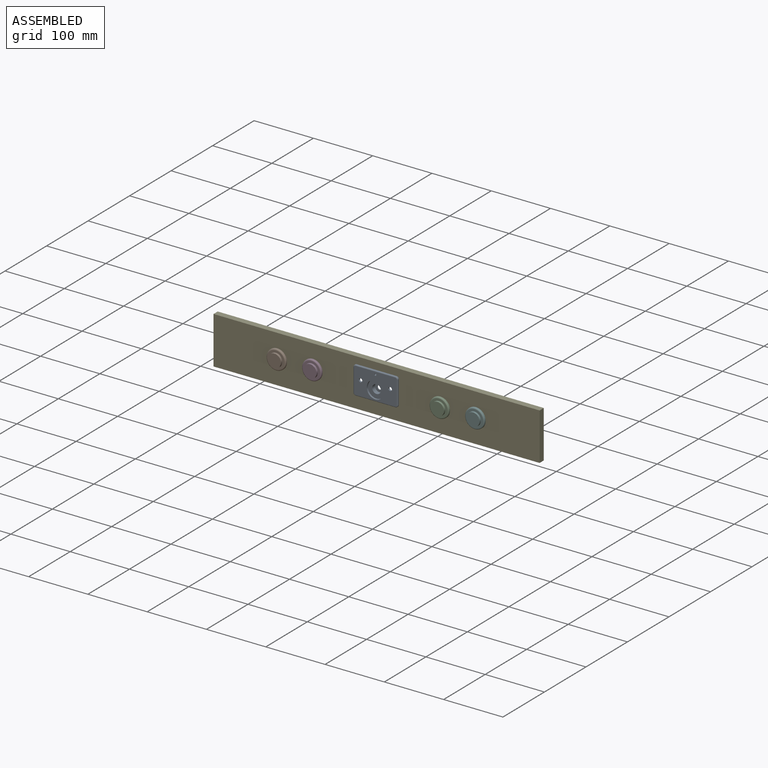
[diagram: assembled view]
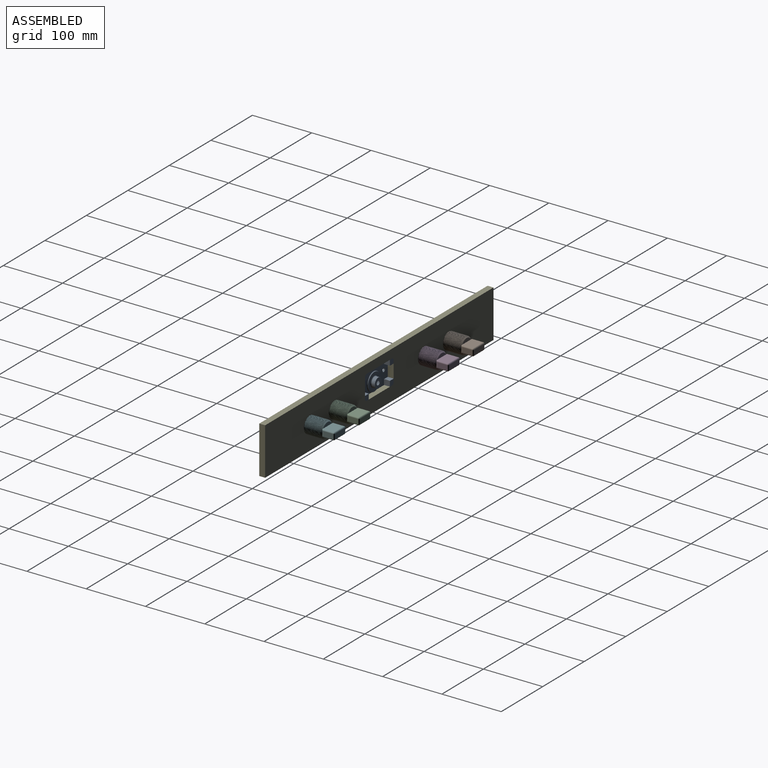
[diagram: assembled view, second angle]
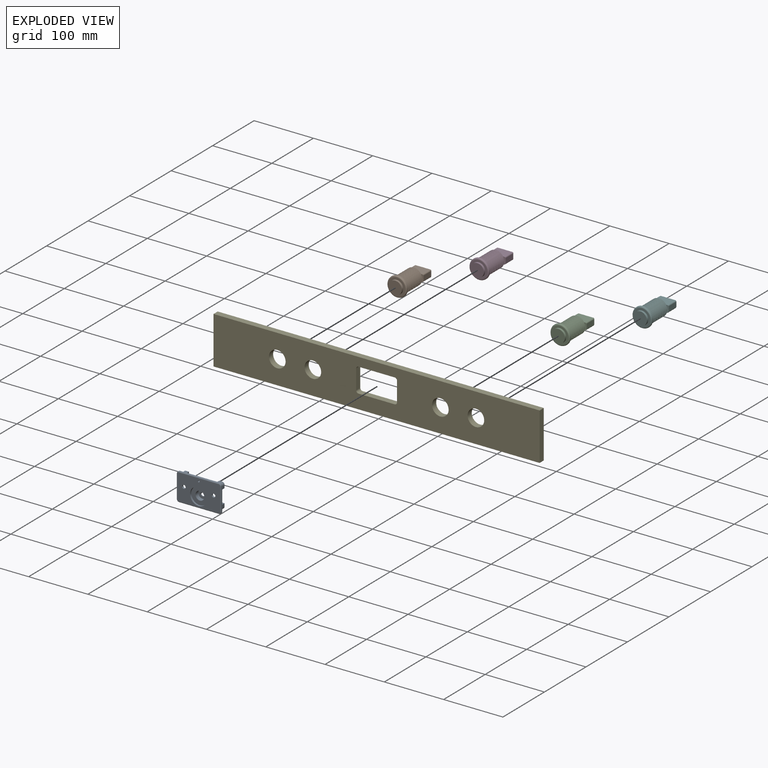
[diagram: exploded view]
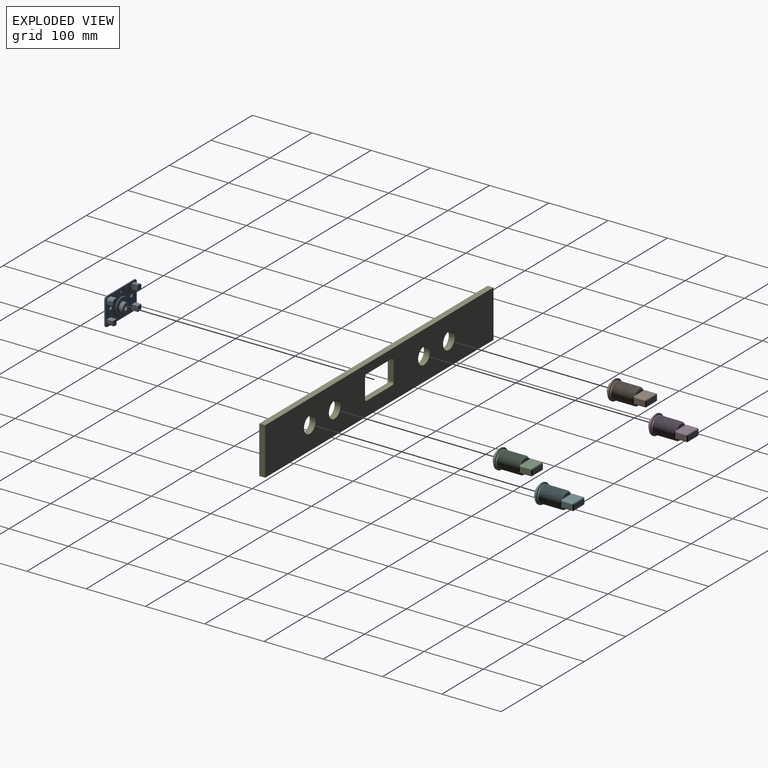
[diagram: exploded view, second angle]
ASSEMBLY  parts=6 mates=5
PART A: 58 faces, bbox 75.7x13x47.7 mm
  f0: plane 75x47mm, normal (0,1,0), area 2333.1mm2, adj f1,f2,f3,f5,f6,f7,f8,f20
  f1: plane 67x1.5mm, normal (0,0,1), area 100.5mm2, adj f0,f44,f47,f50
  f2: plane 39x1.5mm, normal (-1,0,0), area 58.5mm2, adj f0,f44,f45,f53
  f3: plane 67x1.5mm, normal (0,0,-1), area 100.5mm2, adj f0,f45,f46,f57
  f4: cylinder r=14.5mm len=29mm, axis (0,1,0), area 273.3mm2, adj f9,f10
  f5: cylinder r=1.5mm len=3mm, axis (0,1,0), area 28.3mm2, adj f0,f9
  f6: cylinder r=3mm len=6mm, axis (0,1,0), area 56.5mm2, adj f0,f9
  f7: cylinder r=3mm len=6mm, axis (0,1,0), area 56.5mm2, adj f0,f9
  f8: plane 39x1.5mm, normal (1,0,0), area 58.5mm2, adj f0,f46,f47,f54
  f9: plane 72x44mm, normal (0,-1,0), area 2438.5mm2, adj f4,f5,f6,f7,f50,f51,f52,f53
  f10: plane 29x29mm, normal (0,-1,0), area 488.5mm2, adj f4,f12
  f11: cylinder r=15mm len=30mm, axis (0,-1,0), area 47.1mm2, adj f13,f49
  f12: cylinder r=7.4mm len=14.8mm, axis (0,-1,0), area 320.8mm2, adj f10,f19
  f13: plane 30x30mm, normal (0,1,0), area 438.1mm2, adj f11,f48
  f14: cylinder r=8.25mm len=16.5mm, axis (0,-1,0), area 228.1mm2, adj f15,f48
  f15: plane 16.5x16.5mm, normal (0,1,0), area 2.6mm2, adj f14,f16
  f16: cylinder r=8.2mm len=16.4mm, axis (0,-1,0), area 61.8mm2, adj f15,f18
  f17: cylinder r=3.52mm len=7.05mm, axis (0,-1,0), area 26.6mm2, adj f18,f19
  f18: plane 16.4x16.4mm, normal (0,1,0), area 172.2mm2, adj f16,f17
  f19: plane 14.8x14.8mm, normal (0,-1,0), area 133mm2, adj f12,f17
  f20: plane 10x5mm, normal (0,0,1), area 50mm2, adj f0,f23,f24,f43
  f21: plane 10x5mm, normal (1,0,0), area 50mm2, adj f0,f22,f24,f43
  f22: plane 10x9mm, normal (0,0,-1), area 90mm2, adj f0,f21,f23,f24
  f23: plane 10x9mm, normal (-1,0,0), area 90mm2, adj f0,f20,f22,f24
  f24: plane 9x9mm, normal (0,1,0), area 77.6mm2, adj f20,f21,f22,f23,f43
  f25: plane 10x5mm, normal (0,0,1), area 50mm2, adj f0,f26,f29,f42
  f26: plane 10x9mm, normal (1,0,0), area 90mm2, adj f0,f25,f27,f29
  f27: plane 10x9mm, normal (0,0,-1), area 90mm2, adj f0,f26,f28,f29
  f28: plane 10x5mm, normal (-1,0,0), area 50mm2, adj f0,f27,f29,f42
  f29: plane 9x9mm, normal (0,1,0), area 77.6mm2, adj f25,f26,f27,f28,f42
  f30: plane 10x9mm, normal (0,0,1), area 90mm2, adj f0,f31,f33,f34
  f31: plane 10x5mm, normal (1,0,0), area 50mm2, adj f0,f30,f34,f41
  f32: plane 10x5mm, normal (0,0,-1), area 50mm2, adj f0,f33,f34,f41
  f33: plane 10x9mm, normal (-1,0,0), area 90mm2, adj f0,f30,f32,f34
  f34: plane 9x9mm, normal (0,1,0), area 77.6mm2, adj f30,f31,f32,f33,f41
  f35: plane 10x5mm, normal (-1,0,0), area 50mm2, adj f0,f36,f39,f40
  f36: plane 10x9mm, normal (0,0,1), area 90mm2, adj f0,f35,f37,f39
  f37: plane 10x9mm, normal (1,0,0), area 90mm2, adj f0,f36,f38,f39
  f38: plane 10x5mm, normal (0,0,-1), area 50mm2, adj f0,f37,f39,f40
  f39: plane 9x9mm, normal (0,1,0), area 77.6mm2, adj f35,f36,f37,f38,f40
  f40: cylinder r=4mm len=10mm, axis (0,1,0), area 62.8mm2, adj f0,f35,f38,f39
  f41: cylinder r=4mm len=10mm, axis (0,1,0), area 62.8mm2, adj f0,f31,f32,f34
  f42: cylinder r=4mm len=10mm, axis (0,1,0), area 62.8mm2, adj f0,f25,f28,f29
  f43: cylinder r=4mm len=10mm, axis (0,1,0), area 62.8mm2, adj f0,f20,f21,f24
  f44: cylinder r=4mm len=4mm, axis (0,-1,0), area 9.4mm2, adj f0,f1,f2,f51
  f45: cylinder r=4mm len=4mm, axis (0,1,0), area 9.4mm2, adj f0,f2,f3,f55
  f46: cylinder r=4mm len=4mm, axis (0,-1,0), area 9.4mm2, adj f0,f3,f8,f56
  f47: cylinder r=4mm len=4mm, axis (0,1,0), area 9.4mm2, adj f0,f1,f8,f52
  f48: torus R=9.25mm, axis (0,1,0), area 85mm2, adj f13,f14
  f49: torus R=16mm, axis (0,-1,0), area 151.6mm2, adj f0,f11
  f50: cylinder r=1.5mm len=67mm, axis (1,0,0), area 157.9mm2, adj f1,f9,f51,f52
  f51: torus R=2.5mm, axis (0,-1,0), area 12.8mm2, adj f9,f44,f50,f53
  f52: torus R=2.5mm, axis (0,-1,0), area 12.8mm2, adj f9,f47,f50,f54
  f53: cylinder r=1.5mm len=39mm, axis (0,0,1), area 91.9mm2, adj f2,f9,f51,f55
  f54: cylinder r=1.5mm len=39mm, axis (0,0,-1), area 91.9mm2, adj f8,f9,f52,f56
  f55: torus R=2.5mm, axis (0,-1,0), area 12.8mm2, adj f9,f45,f53,f57
  f56: torus R=2.5mm, axis (0,-1,0), area 12.8mm2, adj f9,f46,f54,f57
  f57: cylinder r=1.5mm len=67mm, axis (-1,0,0), area 157.9mm2, adj f3,f9,f55,f56
PART B: 66 faces, bbox 35.9x35.9x68.2 mm
  f0: cylinder r=11mm len=22mm, axis (0,0,-1), area 241.9mm2, adj f1,f65
  f1: plane 29x29mm, normal (0,0,1), area 280.4mm2, adj f0,f2
  f2: torus R=14.5mm, axis (0,0,-1), area 311.4mm2, adj f1,f3
  f3: cylinder r=16.5mm len=33mm, axis (0,0,-1), area 155.5mm2, adj f2,f4
  f4: plane 33x33mm, normal (0,0,-1), area 239.5mm2, adj f3,f5
  f5: cylinder r=14mm len=28mm, axis (0,0,1), area 175.6mm2, adj f4,f6,f7,f61,f62,f63,f64
  f6: plane 4.27x3.25mm, normal (0.25,0.43,-0.87), area 2.9mm2, adj f5,f7,f64
  f7: cylinder r=0.2mm len=4.33mm, axis (-0.87,0.5,0), area 2mm2, adj f5,f6,f8,f61
  f8: bspline ~37.6x30.48mm, area 853.8mm2, adj f7,f9,f62,f64
  f9: cone r=12mm half-angle=45deg, axis (0,0,1), area 177.3mm2, adj f8,f10,f33,f56,f57,f58,f59,f60
  f10: cylinder r=14mm len=12.32mm, axis (0,0,1), area 1.5mm2, adj f9,f11,f62
  f11: cylinder r=14mm len=28mm, axis (0,0,1), area 20.2mm2, adj f10,f12,f62,f64
  f12: cylinder r=14mm len=28mm, axis (0,0,1), area 20.2mm2, adj f11,f13,f62,f64
  f13: cylinder r=14mm len=28mm, axis (0,0,1), area 20.2mm2, adj f12,f14,f62,f64
  f14: cylinder r=14mm len=28mm, axis (0,0,1), area 20.2mm2, adj f13,f15,f62,f64
  f15: cylinder r=14mm len=28mm, axis (0,0,1), area 20.2mm2, adj f14,f16,f62,f64
  f16: cylinder r=14mm len=28mm, axis (0,0,1), area 20.2mm2, adj f15,f17,f62,f64
  f17: cylinder r=14mm len=28mm, axis (0,0,1), area 20.2mm2, adj f16,f18,f62,f64
  f18: cylinder r=14mm len=28mm, axis (0,0,1), area 20.2mm2, adj f17,f19,f62,f64
  f19: cylinder r=14mm len=28mm, axis (0,0,1), area 20.2mm2, adj f18,f20,f62,f64
  f20: cylinder r=14mm len=28mm, axis (0,0,1), area 20.2mm2, adj f19,f21,f62,f64
  f21: cylinder r=14mm len=28mm, axis (0,0,1), area 20.2mm2, adj f20,f22,f62,f64
  f22: cylinder r=14mm len=28mm, axis (0,0,1), area 20.2mm2, adj f21,f23,f62,f64
  f23: cylinder r=14mm len=28mm, axis (0,0,1), area 20.2mm2, adj f22,f24,f62,f64
  f24: cylinder r=14mm len=28mm, axis (0,0,1), area 20.2mm2, adj f23,f25,f62,f64
  f25: cylinder r=14mm len=28mm, axis (0,0,1), area 20.2mm2, adj f24,f26,f62,f64
  f26: cylinder r=14mm len=28mm, axis (0,0,1), area 20.2mm2, adj f25,f27,f62,f64
  f27: cylinder r=14mm len=28mm, axis (0,0,1), area 20.2mm2, adj f26,f28,f62,f64
  f28: cylinder r=14mm len=28mm, axis (0,0,1), area 20.2mm2, adj f27,f29,f62,f64
  f29: cylinder r=14mm len=28mm, axis (0,0,1), area 20.2mm2, adj f28,f30,f62,f64
  f30: cylinder r=14mm len=28mm, axis (0,0,1), area 20.2mm2, adj f29,f31,f62,f64
  f31: cylinder r=14mm len=28mm, axis (0,0,1), area 20.2mm2, adj f30,f32,f62,f64
  f32: cylinder r=14mm len=28mm, axis (0,0,1), area 20.2mm2, adj f31,f62,f63,f64
  f33: plane 6x1.61mm, normal (0,0,1), area 3.1mm2, adj f9,f34,f55
  f34: cylinder r=2mm len=12mm, axis (0,-1,0), area 32.5mm2, adj f33,f35,f36,f52,f53,f54,f60
  f35: bspline ~12.12x7.4mm, area 0.4mm2, adj f34,f53,f54
  f36: cylinder r=2mm len=19mm, axis (0,0,-1), area 56.5mm2, adj f34,f37,f51,f52
  f37: plane 24x19mm, normal (0,-1,0), area 456mm2, adj f36,f38,f50,f58,f59,f60
  f38: cylinder r=2mm len=19mm, axis (0,0,1), area 56.5mm2, adj f37,f39,f48,f49
  f39: plane 17x8mm, normal (1,0,0), area 136mm2, adj f38,f40,f46,f49
  f40: cylinder r=2mm len=19mm, axis (0,0,-1), area 56.5mm2, adj f39,f41,f49,f55
  f41: sphere r=2mm, area 8.6mm2, adj f40,f42,f46
  f42: cylinder r=2mm len=24mm, axis (1,0,0), area 75.4mm2, adj f41,f43,f45,f55
  f43: sphere r=2mm, area 4mm2, adj f42,f44,f53
  f44: cylinder r=2mm len=8mm, axis (0,1,0), area 25.1mm2, adj f43,f45,f51,f52
  f45: plane 24x8mm, normal (0,0,-1), area 192mm2, adj f42,f44,f46,f50
  f46: cylinder r=2mm len=8mm, axis (0,-1,0), area 25.1mm2, adj f39,f41,f45,f47,f48
  f47: sphere r=2mm, area 0.6mm2, adj f46,f50
  f48: sphere r=2mm, area 2.3mm2, adj f38,f46,f50
  f49: cylinder r=2mm len=12mm, axis (0,1,0), area 31.4mm2, adj f38,f39,f40,f57,f58
  f50: cylinder r=2mm len=24mm, axis (-1,0,0), area 75.4mm2, adj f37,f45,f47,f48,f51
  f51: sphere r=2mm, area 7.9mm2, adj f36,f44,f50
  f52: plane 17x8mm, normal (-1,0,0), area 136mm2, adj f34,f36,f44,f53
  f53: cylinder r=2mm len=19mm, axis (0,0,1), area 57.3mm2, adj f34,f35,f43,f52,f54,f55
  f54: cylinder r=14mm len=1.02mm, axis (0,0,1), area 0.1mm2, adj f34,f35,f53
  f55: plane 24x19mm, normal (0,1,0), area 456mm2, adj f33,f40,f42,f53,f56,f57
  f56: plane 20.78x6mm, normal (0,0,-1), area 88.4mm2, adj f9,f55
  f57: plane 6x1.61mm, normal (0,0,1), area 3.1mm2, adj f9,f49,f55
  f58: plane 6x1.61mm, normal (0,0,1), area 3.1mm2, adj f9,f37,f49
  f59: plane 20.78x6mm, normal (0,0,-1), area 88.4mm2, adj f9,f37
  f60: plane 6x1.61mm, normal (0,0,1), area 3.1mm2, adj f9,f34,f37
  f61: plane 4.27x3.25mm, normal (0.25,0.43,0.87), area 2.9mm2, adj f5,f7,f62
  f62: bspline ~37.46x32.33mm, area 1902.1mm2, adj f5,f8,f9,f10,f11,f12,f13,f14
  f63: cylinder r=14mm len=28mm, axis (0,0,1), area 20.2mm2, adj f5,f32,f62,f64
  f64: bspline ~37.71x32.33mm, area 1947.6mm2, adj f5,f6,f8,f9,f11,f12,f13,f14
  f65: plane 22x22mm, normal (0,0,1), area 380.1mm2, adj f0
PART C: same geometry as B
PART D: same geometry as B
PART E: 18 faces, bbox 550x10x80 mm
  f0: plane 33x10mm, normal (1,0,0), area 330mm2, adj f12,f13,f14,f17
  f1: plane 61x10mm, normal (0,0,-1), area 610mm2, adj f12,f13,f14,f15
  f2: plane 33x10mm, normal (-1,0,0), area 330mm2, adj f12,f13,f15,f16
  f3: plane 80x10mm, normal (1,0,0), area 800mm2, adj f4,f10,f12,f13
  f4: plane 550x10mm, normal (0,0,1), area 5500mm2, adj f3,f5,f12,f13
  f5: plane 80x10mm, normal (-1,0,0), area 800mm2, adj f4,f10,f12,f13
  f6: cylinder r=14mm len=28mm, axis (0,-1,0), area 879.6mm2, adj f12,f13
  f7: cylinder r=14mm len=28mm, axis (0,-1,0), area 879.6mm2, adj f12,f13
  f8: cylinder r=14mm len=28mm, axis (0,-1,0), area 879.6mm2, adj f12,f13
  f9: plane 61x10mm, normal (0,0,1), area 610mm2, adj f12,f13,f16,f17
  f10: plane 550x10mm, normal (0,0,-1), area 5500mm2, adj f3,f5,f12,f13
  f11: cylinder r=14mm len=28mm, axis (0,-1,0), area 879.6mm2, adj f12,f13
  f12: plane 550x80mm, normal (0,1,0), area 38721.7mm2, adj f0,f1,f2,f3,f4,f5,f6,f7
  f13: plane 550x80mm, normal (0,-1,0), area 38721.7mm2, adj f0,f1,f2,f3,f4,f5,f6,f7
  f14: cylinder r=4mm len=10mm, axis (0,-1,0), area 62.8mm2, adj f0,f1,f12,f13
  f15: cylinder r=4mm len=10mm, axis (0,1,0), area 62.8mm2, adj f1,f2,f12,f13
  f16: cylinder r=4mm len=10mm, axis (0,-1,0), area 62.8mm2, adj f2,f9,f12,f13
  f17: cylinder r=4mm len=10mm, axis (0,1,0), area 62.8mm2, adj f0,f9,f12,f13
PART F: same geometry as B
PLACE A rot(axis=(0,1,0),180deg) t=(0.49,-5.27,-1.83)mm
PLACE B rot(axis=(1,0,0),90deg) t=(-167.01,-5.27,-0.83)mm
PLACE C rot(axis=(1,0,0),90deg) t=(107.99,-5.27,-0.83)mm
PLACE D rot(axis=(1,0,0),90deg) t=(-107.01,-5.27,-0.83)mm
PLACE E rot(axis=(0,1,0),180deg) t=(0.49,-5.27,-0.83)mm
PLACE F rot(axis=(1,0,0),90deg) t=(167.99,-5.27,-0.83)mm
MATE fastened F.f2 <-> E.f8  axis (0,-1,0) through (167.99,-5.27,-0.83)mm
MATE fastened B.f2 <-> E.f7  axis (0,-1,0) through (-167.01,-5.27,-0.83)mm
MATE fastened A.f0 <-> E.f13  axis (0,-1,0) through (30.99,-5.27,24.17)mm
MATE fastened D.f2 <-> E.f6  axis (0,-1,0) through (-107.01,-5.27,-0.83)mm
MATE fastened C.f2 <-> E.f11  axis (0,-1,0) through (107.99,-5.27,-0.83)mm
